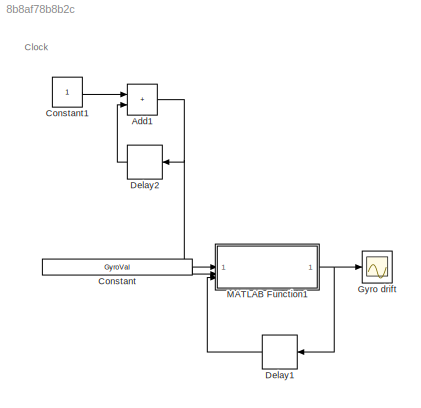
MODEL slx_8b8af78b8b2c
KIND model
CONFIG AbsTol = auto
CONFIG EnableMultiTasking = off
CONFIG FixedStep = 1
CONFIG MaxStep = auto
CONFIG MinStep = auto
CONFIG RelTol = 1e-3
CONFIG SampleTimeConstraint = Unconstrained
CONFIG SolverName = FixedStepAuto
CONFIG StartTime = 0.0
CONFIG StopTime = simuSteps
BLOCK [Sum] Add1
  IconShape = rectangular
BLOCK [Constant] Constant
  Value = GyroVal
BLOCK [Constant] Constant1
BLOCK [Delay] Delay1
  DelayLength = 1
  InputPortMap = u0
  NameLocation = top
BLOCK [Delay] Delay2
  DelayLength = 1
  InputPortMap = u0
  NameLocation = top
BLOCK [Scope] Gyro drift
  Floating = off
  NumInputPorts = 1
  ScopeSpecificationString = Simulink.scopes.TimeScopeBlockCfg('CurrentConfiguration', extmgr.ConfigurationSet(extmgr.Configuration('Core','General UI',true),extmgr.Configuration('Core','Source UI',true),extmgr.Configuration('Sources','WiredSimulink',true),extmgr.Configuration('Visuals','Time Domain',true,'SerializedDisplays',{struct('MinYLimReal','-0.03438','MaxYLimReal','0.29438','YLabelReal','','MinYLimMag','0.00000','MaxY...<+1438ch>
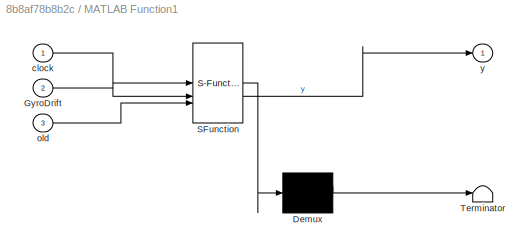
BLOCK [SubSystem] MATLAB Function1
  ErrorFcn = Stateflow.Translate.translate
  LibrarySourceBlock = simulink/User-Defined\nFunctions/MATLAB Function
  PermitHierarchicalResolution = ExplicitOnly
  SFBlockType = MATLAB Function
  TreatAsAtomicUnit = on
BLOCK [Demux] MATLAB Function1/ Demux 
  Outputs = 1
BLOCK [S-Function] MATLAB Function1/ SFunction 
  EnableBusSupport = on
  FunctionName = sf_sfun
  PortCounts = [3 2]
  SFcnIsStateOwnerBlock = off
  SFunctionDeploymentMode = off
  Tag = Stateflow S-Function 1
BLOCK [Terminator] MATLAB Function1/ Terminator 
BLOCK [Inport] MATLAB Function1/GyroDrift
  Port = 2
BLOCK [Inport] MATLAB Function1/clock
BLOCK [Inport] MATLAB Function1/old
  Port = 3
BLOCK [Outport] MATLAB Function1/y
ANNOTATION (root): Clock
NET Add1:1 -> Delay2:1, MATLAB Function1:1
LINE Constant1:1 -> Add1:1
LINE Constant:1 -> MATLAB Function1:2
LINE Delay1:1 -> MATLAB Function1:3
LINE Delay2:1 -> Add1:2
NET MATLAB Function1:1 -> Delay1:1, Gyro drift:1
note: NET lines group one-source signal fan-out (src -> all destinations, sorted); 1:1 wires keep LINE
CHART MATLAB Function1 states=1 transitions=1
  STATE_LABEL 'eML_blk_kernel()'
  STATE_LABEL 'SCRIPT:\nfunction y = fcn(clock,GyroDrift,old)\ndt = 0.05;\n\nif(clock == 1)\ny = GyroDrift(clock,3)*dt;\nelse\n        y = GyroDrift(clock,3)*dt + old;\nend'
CHART  states=0 transitions=0
